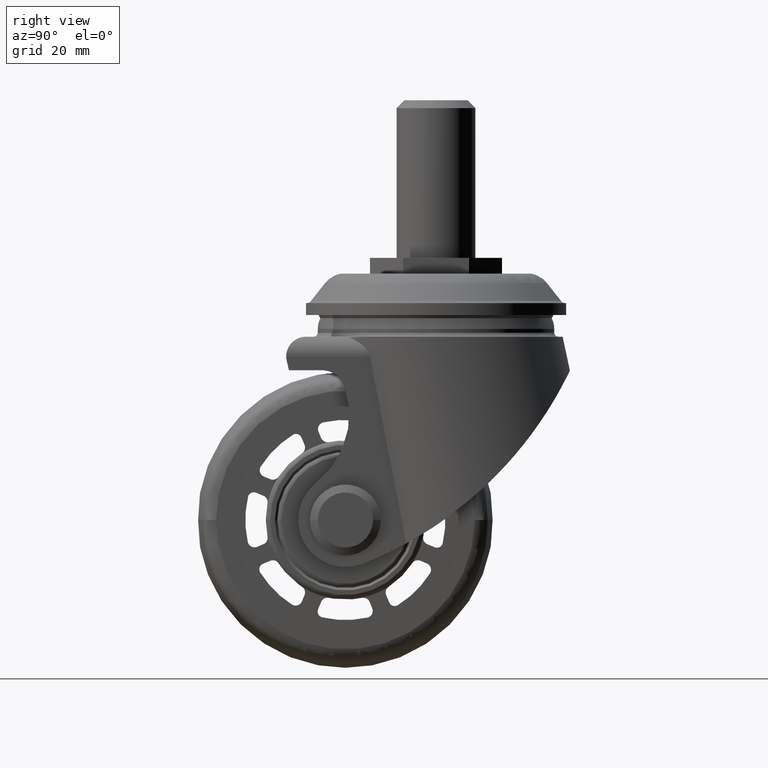
[diagram: clean part render]
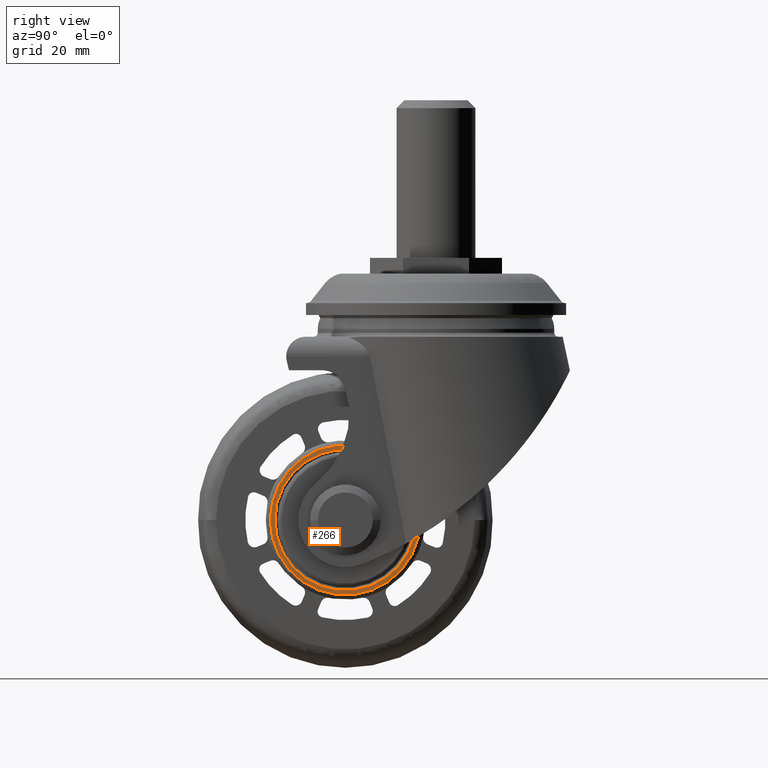
[diagram: same view with one face highlighted and labeled with its STEP entity id]
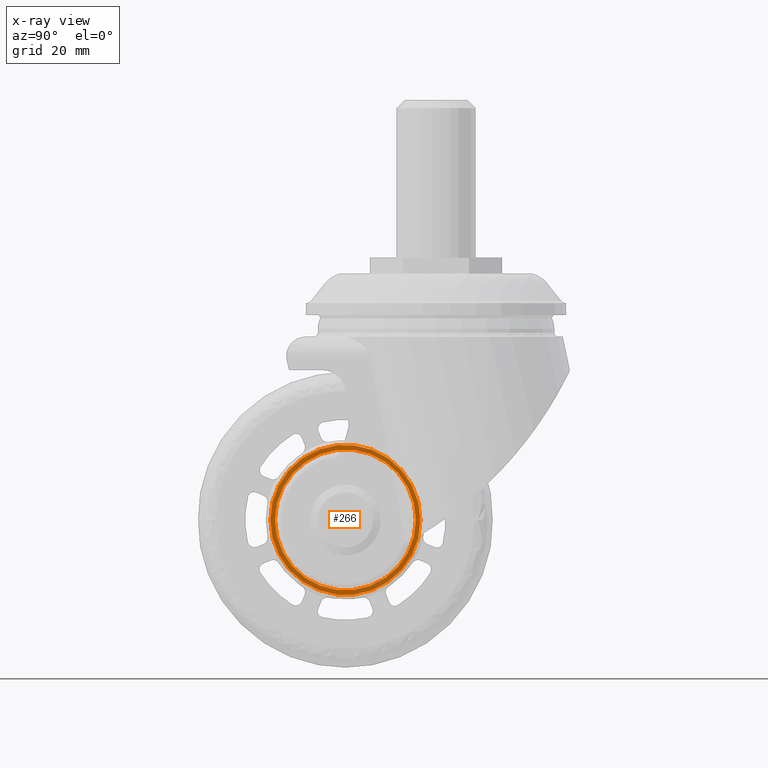
[diagram: x-ray of the same camera — body ghosted, the highlighted face saturated]
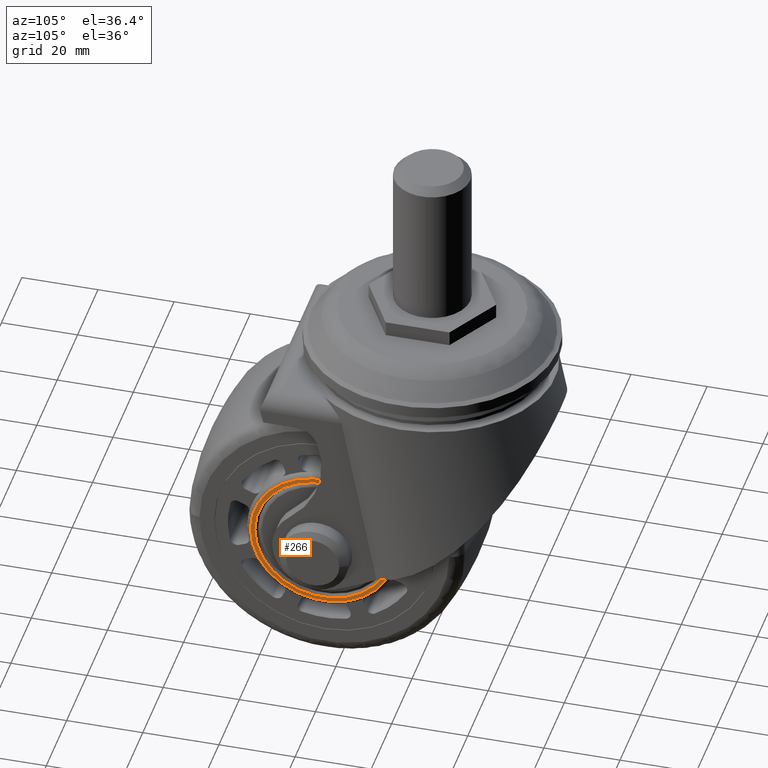
[diagram: same view with one face highlighted and labeled with its STEP entity id]
A machine part, right view. The second image highlights one B-rep face of the part: STEP entity #266.
The next image is the same camera in x-ray: the body ghosted, the highlighted face saturated — about 0% of this face is hidden behind the body in this view.
A second angle (auxiliary view) of the same face is appended — the face is thin or edge-on in the first view.
In plain terms, the highlighted planar face has unit normal (1, 0, 0).
Its self-contained STEP definition (entity closure, byte-faithful):
#266=ADVANCED_FACE('',(#1882,#1883),#1881,.T.);
#1881=PLANE('',#3544);
#1882=FACE_OUTER_BOUND('',#3545,.T.);
#1883=FACE_BOUND('',#3546,.T.);
#3541=CARTESIAN_POINT('',(2.15000000000E+01,-3.95706992191E+01,4.37884615385E+01));
#3542=DIRECTION('',(1.00000000000E+00,0.00000000000E+00,0.00000000000E+00));
#3543=DIRECTION('',(0.00000000000E+00,0.00000000000E+00,-1.00000000000E+00));
#3544=AXIS2_PLACEMENT_3D('',#3541,#3542,#3543);
#3545=EDGE_LOOP('',(#4976,#4977));
#3546=EDGE_LOOP('',(#4978,#4979));
#4976=ORIENTED_EDGE('',*,*,#5682,.T.);
#4977=ORIENTED_EDGE('',*,*,#5683,.T.);
#4978=ORIENTED_EDGE('',*,*,#5684,.F.);
#4979=ORIENTED_EDGE('',*,*,#5685,.F.);
#5682=EDGE_CURVE('',#8749,#8750,#8751,.T.);
#5683=EDGE_CURVE('',#8750,#8749,#8757,.T.);
#5684=EDGE_CURVE('',#8763,#8764,#8765,.T.);
#5685=EDGE_CURVE('',#8764,#8763,#8771,.T.);
#8749=VERTEX_POINT('',#11492);
#8750=VERTEX_POINT('',#11493);
#8751=CIRCLE('',#11497,1.90384615385E+01);
#8757=CIRCLE('',#11501,1.90384615385E+01);
#8763=VERTEX_POINT('',#11502);
#8764=VERTEX_POINT('',#11503);
#8765=CIRCLE('',#11507,1.78846153846E+01);
#8771=CIRCLE('',#11511,1.78846153846E+01);
#11492=CARTESIAN_POINT('',(2.15000000000E+01,0.00000000000E+00,-1.90384615385E+01));
#11493=CARTESIAN_POINT('',(2.15000000000E+01,0.00000000000E+00,1.90384615385E+01));
#11494=CARTESIAN_POINT('',(2.15000000000E+01,0.00000000000E+00,0.00000000000E+00));
#11495=DIRECTION('',(1.00000000000E+00,0.00000000000E+00,0.00000000000E+00));
#11496=DIRECTION('',(0.00000000000E+00,-1.22460635382E-16,-1.00000000000E+00));
#11497=AXIS2_PLACEMENT_3D('',#11494,#11495,#11496);
#11498=CARTESIAN_POINT('',(2.15000000000E+01,0.00000000000E+00,0.00000000000E+00));
#11499=DIRECTION('',(1.00000000000E+00,0.00000000000E+00,0.00000000000E+00));
#11500=DIRECTION('',(0.00000000000E+00,-1.22460635382E-16,-1.00000000000E+00));
#11501=AXIS2_PLACEMENT_3D('',#11498,#11499,#11500);
#11502=CARTESIAN_POINT('',(2.15000000000E+01,1.18423789293E-15,1.78846153846E+01));
#11503=CARTESIAN_POINT('',(2.15000000000E+01,0.00000000000E+00,-1.78846153846E+01));
#11504=CARTESIAN_POINT('',(2.15000000000E+01,0.00000000000E+00,0.00000000000E+00));
#11505=DIRECTION('',(1.00000000000E+00,0.00000000000E+00,0.00000000000E+00));
#11506=DIRECTION('',(0.00000000000E+00,-1.22460635382E-16,-1.00000000000E+00));
#11507=AXIS2_PLACEMENT_3D('',#11504,#11505,#11506);
#11508=CARTESIAN_POINT('',(2.15000000000E+01,0.00000000000E+00,0.00000000000E+00));
#11509=DIRECTION('',(1.00000000000E+00,0.00000000000E+00,0.00000000000E+00));
#11510=DIRECTION('',(0.00000000000E+00,-1.22460635382E-16,-1.00000000000E+00));
#11511=AXIS2_PLACEMENT_3D('',#11508,#11509,#11510);